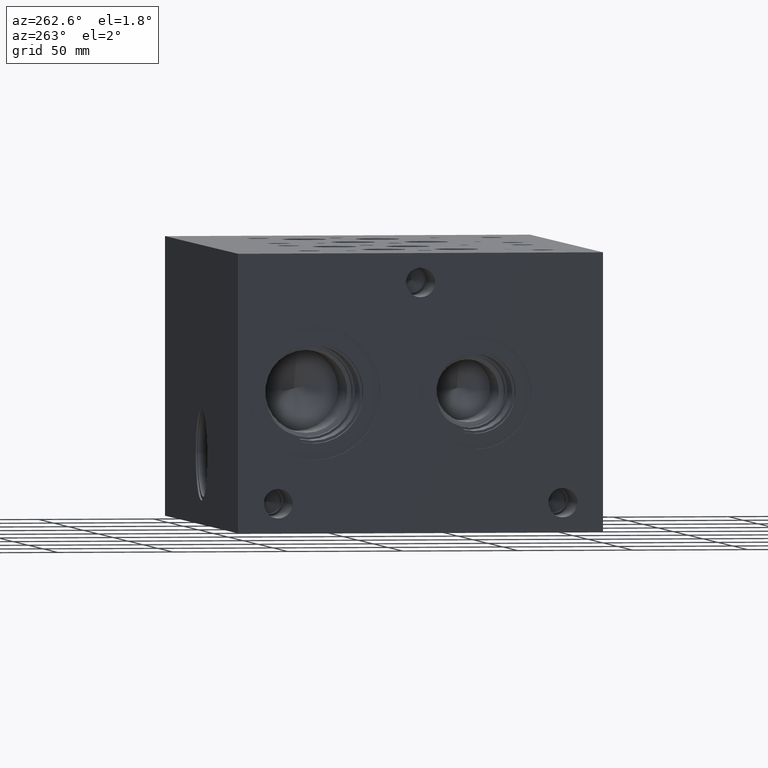
[diagram: clean part render]
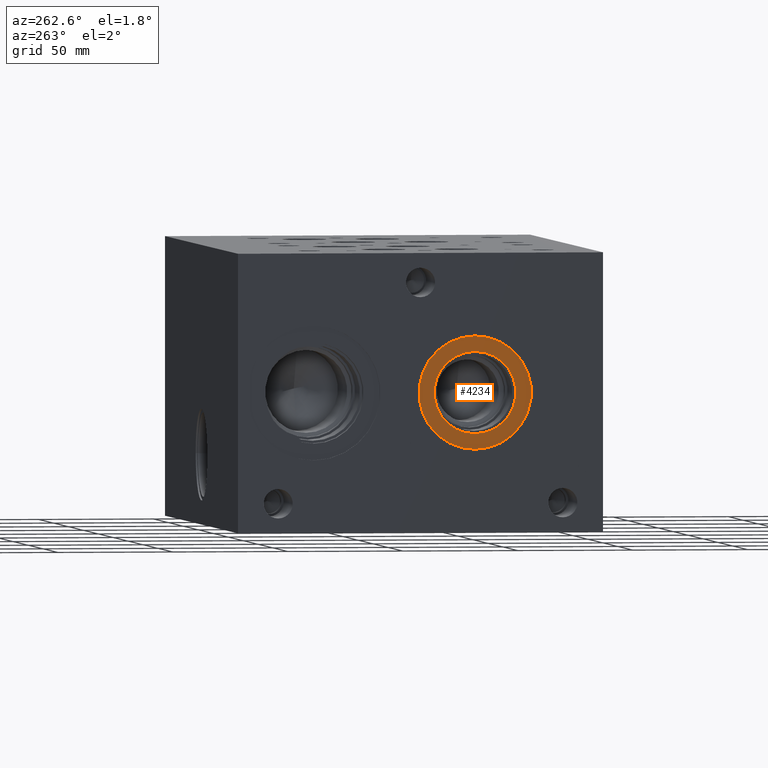
[diagram: same view with one face highlighted and labeled with its STEP entity id]
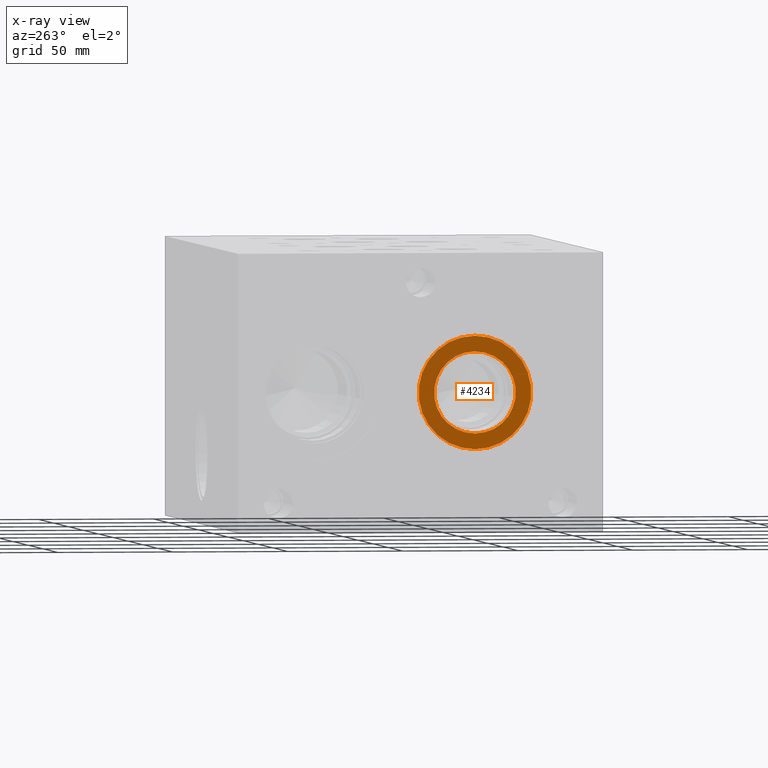
[diagram: x-ray of the same camera — body ghosted, the highlighted face saturated]
A machine part, auxiliary view. The second image highlights one B-rep face of the part: STEP entity #4234.
The next image is the same camera in x-ray: the body ghosted, the highlighted face saturated — about 0% of this face is hidden behind the body in this view.
In plain terms, the highlighted planar face has unit normal (1, 0, 0).
Its self-contained STEP definition (entity closure, byte-faithful):
#4203=CARTESIAN_POINT('',(0.030000000000000,2.188000000000000,3.339000000000000));
#4204=VERTEX_POINT('',#4203);
#4205=CARTESIAN_POINT('',(0.030000000000000,2.188000000000000,2.375000000000000));
#4206=DIRECTION('',(1.0,0.0,0.0));
#4207=DIRECTION('',(0.0,-1.0,0.0));
#4208=AXIS2_PLACEMENT_3D('',#4205,#4206,#4207);
#4209=CIRCLE('',#4208,0.964000000000000);
#4210=EDGE_CURVE('',#4204,#4204,#4209,.T.);
#4215=CARTESIAN_POINT('',(0.030000000000000,2.188000000000000,2.375000000000000));
#4216=DIRECTION('',(1.0,0.0,0.0));
#4217=DIRECTION('',(0.0,0.0,-1.0));
#4218=AXIS2_PLACEMENT_3D('',#4215,#4216,#4217);
#4219=PLANE('',#4218);
#4220=ORIENTED_EDGE('',*,*,#4210,.F.);
#4221=EDGE_LOOP('',(#4220));
#4222=FACE_OUTER_BOUND('',#4221,.T.);
#4223=CARTESIAN_POINT('',(0.030000000000000,2.188000000000000,3.074000000000000));
#4224=VERTEX_POINT('',#4223);
#4225=CARTESIAN_POINT('',(0.030000000000000,2.188000000000000,2.375000000000000));
#4226=DIRECTION('',(1.0,0.0,0.0));
#4227=DIRECTION('',(0.0,-1.0,0.0));
#4228=AXIS2_PLACEMENT_3D('',#4225,#4226,#4227);
#4229=CIRCLE('',#4228,0.699000000000000);
#4230=EDGE_CURVE('',#4224,#4224,#4229,.T.);
#4231=ORIENTED_EDGE('',*,*,#4230,.T.);
#4232=EDGE_LOOP('',(#4231));
#4233=FACE_BOUND('',#4232,.T.);
#4234=ADVANCED_FACE('',(#4222,#4233),#4219,.F.);